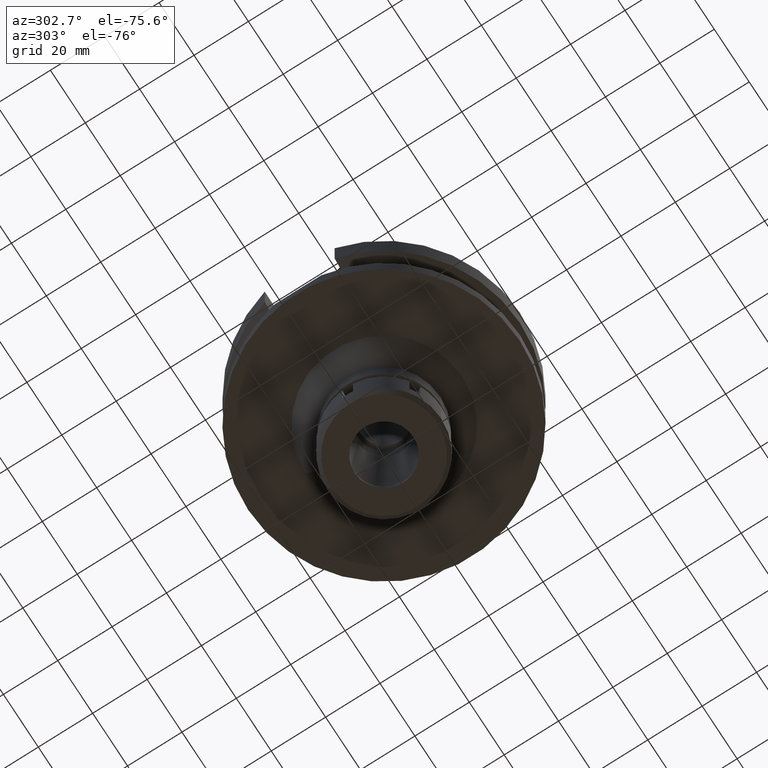
[diagram: clean part render]
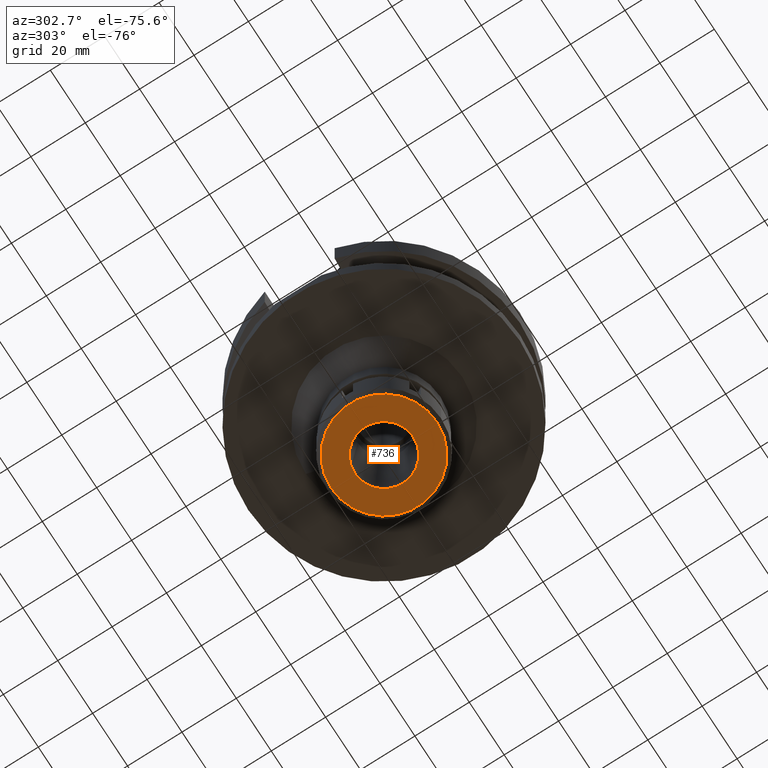
[diagram: same view with one face highlighted and labeled with its STEP entity id]
A machine part, auxiliary view. The second image highlights one B-rep face of the part: STEP entity #736.
In plain terms, the highlighted planar face has unit normal (0, 0, -1).
Its self-contained STEP definition (entity closure, byte-faithful):
#44 = EDGE_LOOP ( 'NONE', ( #2978, #1685 ) ) ;
#245 = DIRECTION ( 'NONE',  ( 0.0000000000000000000, 0.0000000000000000000, -1.000000000000000000 ) ) ;
#272 = EDGE_CURVE ( 'NONE', #3394, #1186, #2540, .T. ) ;
#315 = EDGE_CURVE ( 'NONE', #739, #2388, #2821, .T. ) ;
#447 = CARTESIAN_POINT ( 'NONE',  ( 0.0000000000000000000, 0.0000000000000000000, -16.00000000000000000 ) ) ;
#498 = EDGE_CURVE ( 'NONE', #1186, #3394, #2715, .T. ) ;
#649 = ORIENTED_EDGE ( 'NONE', *, *, #498, .F. ) ;
#736 = ADVANCED_FACE ( 'NONE', ( #1053, #2175 ), #3301, .T. ) ;
#739 = VERTEX_POINT ( 'NONE', #2155 ) ;
#888 = DIRECTION ( 'NONE',  ( 0.0000000000000000000, 0.0000000000000000000, -1.000000000000000000 ) ) ;
#905 = CARTESIAN_POINT ( 'NONE',  ( 0.0000000000000000000, 0.0000000000000000000, -16.00000000000000000 ) ) ;
#1041 = DIRECTION ( 'NONE',  ( 0.0000000000000000000, 0.0000000000000000000, 1.000000000000000000 ) ) ;
#1053 = FACE_OUTER_BOUND ( 'NONE', #44, .T. ) ;
#1154 = AXIS2_PLACEMENT_3D ( 'NONE', #905, #888, #1995 ) ;
#1186 = VERTEX_POINT ( 'NONE', #2417 ) ;
#1576 = AXIS2_PLACEMENT_3D ( 'NONE', #447, #3505, #2137 ) ;
#1619 = AXIS2_PLACEMENT_3D ( 'NONE', #2478, #1041, #3564 ) ;
#1649 = DIRECTION ( 'NONE',  ( 0.0000000000000000000, -1.000000000000000000, 0.0000000000000000000 ) ) ;
#1673 = AXIS2_PLACEMENT_3D ( 'NONE', #2979, #2450, #1649 ) ;
#1685 = ORIENTED_EDGE ( 'NONE', *, *, #3435, .F. ) ;
#1959 = AXIS2_PLACEMENT_3D ( 'NONE', #2686, #245, #3250 ) ;
#1980 = CIRCLE ( 'NONE', #1576, 19.50000000000000000 ) ;
#1995 = DIRECTION ( 'NONE',  ( 0.0000000000000000000, 1.000000000000000000, 0.0000000000000000000 ) ) ;
#2137 = DIRECTION ( 'NONE',  ( 0.0000000000000000000, -1.000000000000000000, 0.0000000000000000000 ) ) ;
#2155 = CARTESIAN_POINT ( 'NONE',  ( 0.0000000000000000000, 19.50000000000000000, -16.00000000000000000 ) ) ;
#2175 = FACE_BOUND ( 'NONE', #2244, .T. ) ;
#2244 = EDGE_LOOP ( 'NONE', ( #649, #3087 ) ) ;
#2388 = VERTEX_POINT ( 'NONE', #2910 ) ;
#2417 = CARTESIAN_POINT ( 'NONE',  ( 0.0000000000000000000, 10.75000000000000000, -16.00000000000000000 ) ) ;
#2450 = DIRECTION ( 'NONE',  ( 0.0000000000000000000, 0.0000000000000000000, -1.000000000000000000 ) ) ;
#2478 = CARTESIAN_POINT ( 'NONE',  ( 0.0000000000000000000, 0.0000000000000000000, -16.00000000000000000 ) ) ;
#2540 = CIRCLE ( 'NONE', #1673, 10.75000000000000000 ) ;
#2686 = CARTESIAN_POINT ( 'NONE',  ( 0.0000000000000000000, 0.0000000000000000000, -16.00000000000000000 ) ) ;
#2715 = CIRCLE ( 'NONE', #1154, 10.75000000000000000 ) ;
#2821 = CIRCLE ( 'NONE', #1619, 19.50000000000000000 ) ;
#2910 = CARTESIAN_POINT ( 'NONE',  ( 0.0000000000000000000, -19.50000000000000000, -16.00000000000000000 ) ) ;
#2978 = ORIENTED_EDGE ( 'NONE', *, *, #315, .F. ) ;
#2979 = CARTESIAN_POINT ( 'NONE',  ( 0.0000000000000000000, 0.0000000000000000000, -16.00000000000000000 ) ) ;
#3087 = ORIENTED_EDGE ( 'NONE', *, *, #272, .F. ) ;
#3250 = DIRECTION ( 'NONE',  ( 0.0000000000000000000, -1.000000000000000000, 0.0000000000000000000 ) ) ;
#3301 = PLANE ( 'NONE',  #1959 ) ;
#3394 = VERTEX_POINT ( 'NONE', #3561 ) ;
#3435 = EDGE_CURVE ( 'NONE', #2388, #739, #1980, .T. ) ;
#3505 = DIRECTION ( 'NONE',  ( 0.0000000000000000000, 0.0000000000000000000, 1.000000000000000000 ) ) ;
#3561 = CARTESIAN_POINT ( 'NONE',  ( 0.0000000000000000000, -10.75000000000000000, -16.00000000000000000 ) ) ;
#3564 = DIRECTION ( 'NONE',  ( 0.0000000000000000000, 1.000000000000000000, 0.0000000000000000000 ) ) ;